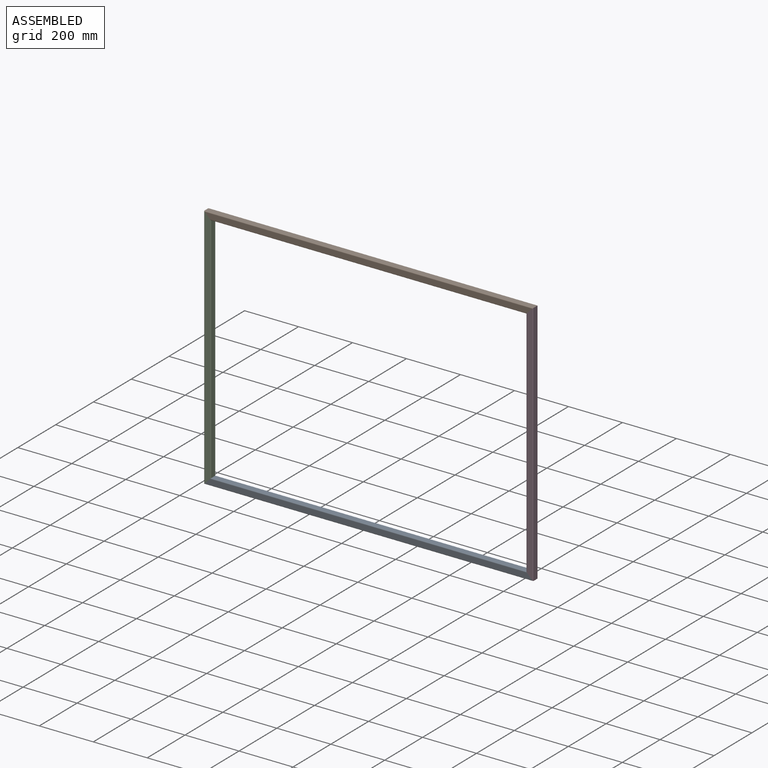
[diagram: assembled view]
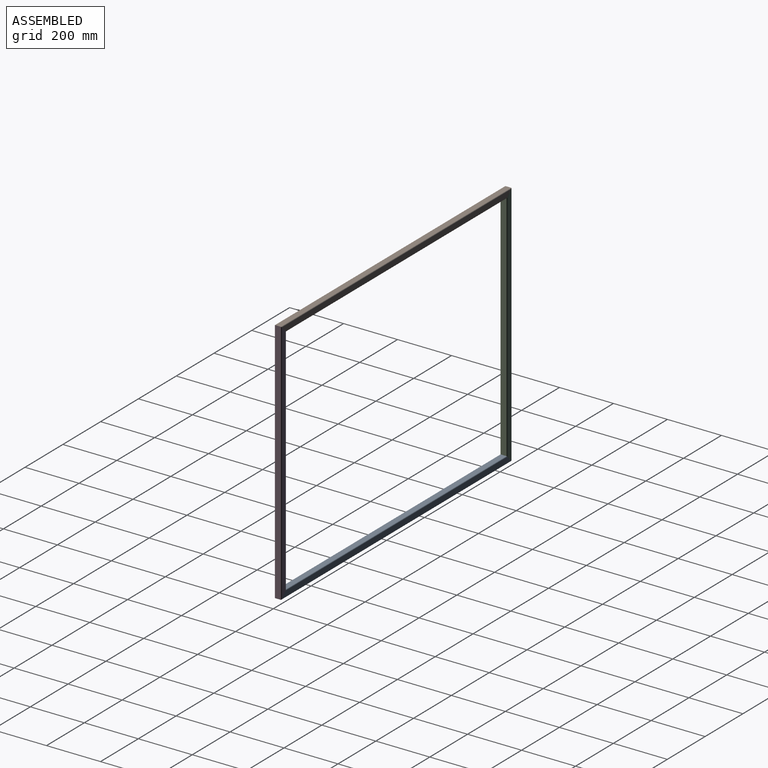
[diagram: assembled view, second angle]
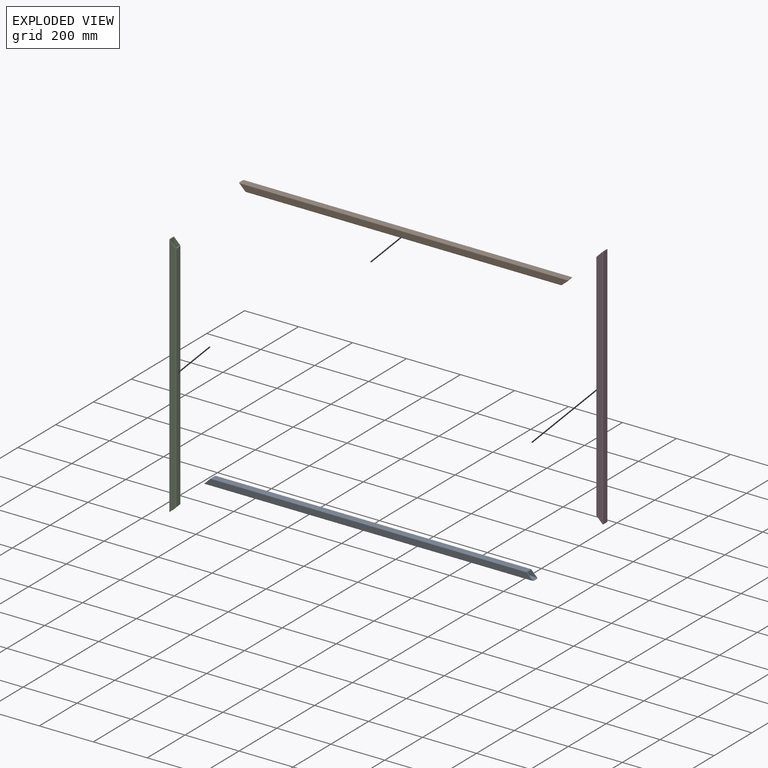
[diagram: exploded view]
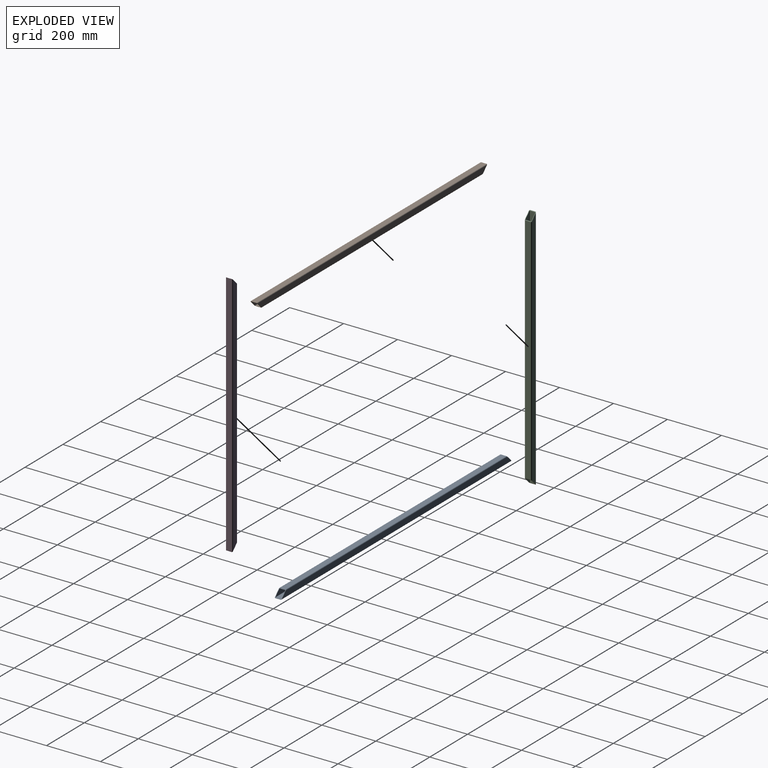
[diagram: exploded view, second angle]
ASSEMBLY  parts=4 mates=3
PART A: 18 faces, bbox 25.4x25.4x1219.2 mm
  f0: plane 1168.4x20.32mm, normal (-1,0,0), area 23741.9mm2, adj f3,f4,f16,f17
  f1: cylinder r=2.54mm len=1219.2mm, axis (0,0,-1), area 4857mm2, adj f2,f15,f16,f17
  f2: plane 1214.12x20.32mm, normal (0,1,0), area 24258mm2, adj f1,f3,f16,f17
  f3: cylinder r=2.54mm len=1173.48mm, axis (0,0,-1), area 4669.1mm2, adj f0,f2,f16,f17
  f4: cylinder r=2.54mm len=1173.48mm, axis (0,0,-1), area 4669.1mm2, adj f0,f5,f16,f17
  f5: plane 1214.12x20.32mm, normal (0,-1,0), area 24258mm2, adj f4,f14,f16,f17
  f6: cylinder r=1.27mm len=1174.24mm, axis (0,0,-1), area 2339.3mm2, adj f7,f13,f16,f17
  f7: plane 1213.36x19.56mm, normal (0,-1,0), area 23348.3mm2, adj f6,f8,f16,f17
  f8: cylinder r=1.27mm len=1215.9mm, axis (0,0,-1), area 2423.8mm2, adj f7,f9,f16,f17
  f9: plane 1215.9x19.56mm, normal (-1,0,0), area 23780.5mm2, adj f8,f10,f16,f17
  f10: cylinder r=1.27mm len=1215.9mm, axis (0,0,-1), area 2423.8mm2, adj f9,f11,f16,f17
  f11: plane 1213.36x19.56mm, normal (0,1,0), area 23348.3mm2, adj f10,f12,f16,f17
  f12: cylinder r=1.27mm len=1174.24mm, axis (0,0,-1), area 2339.3mm2, adj f11,f13,f16,f17
  f13: plane 1171.7x19.56mm, normal (1,0,0), area 22916.1mm2, adj f6,f12,f16,f17
  f14: cylinder r=2.54mm len=1219.2mm, axis (0,0,-1), area 4857mm2, adj f5,f15,f16,f17
  f15: plane 1219.2x20.32mm, normal (1,0,0), area 24774.1mm2, adj f1,f14,f16,f17
  f16: plane 25.4x25.4mm, normal (-0.71,0,0.71), area 215.9mm2, adj f0,f1,f2,f3,f4,f5,f6,f7
  f17: plane 25.4x25.4mm, normal (-0.71,0,-0.71), area 215.9mm2, adj f0,f1,f2,f3,f4,f5,f6,f7
PART B: same geometry as A
PART C: 18 faces, bbox 25.4x25.4x914.4 mm
  f0: plane 863.6x20.32mm, normal (-1,0,0), area 17548.4mm2, adj f3,f4,f16,f17
  f1: cylinder r=2.54mm len=914.4mm, axis (0,0,-1), area 3640.9mm2, adj f2,f15,f16,f17
  f2: plane 909.32x20.32mm, normal (0,1,0), area 18064.5mm2, adj f1,f3,f16,f17
  f3: cylinder r=2.54mm len=868.68mm, axis (0,0,-1), area 3453mm2, adj f0,f2,f16,f17
  f4: cylinder r=2.54mm len=868.68mm, axis (0,0,-1), area 3453mm2, adj f0,f5,f16,f17
  f5: plane 909.32x20.32mm, normal (0,-1,0), area 18064.5mm2, adj f4,f14,f16,f17
  f6: cylinder r=1.27mm len=869.44mm, axis (0,0,-1), area 1731.2mm2, adj f7,f13,f16,f17
  f7: plane 908.56x19.56mm, normal (0,-1,0), area 17387.1mm2, adj f6,f8,f16,f17
  f8: cylinder r=1.27mm len=911.1mm, axis (0,0,-1), area 1815.7mm2, adj f7,f9,f16,f17
  f9: plane 911.1x19.56mm, normal (-1,0,0), area 17819.3mm2, adj f8,f10,f16,f17
  f10: cylinder r=1.27mm len=911.1mm, axis (0,0,-1), area 1815.7mm2, adj f9,f11,f16,f17
  f11: plane 908.56x19.56mm, normal (0,1,0), area 17387.1mm2, adj f10,f12,f16,f17
  f12: cylinder r=1.27mm len=869.44mm, axis (0,0,-1), area 1731.2mm2, adj f11,f13,f16,f17
  f13: plane 866.9x19.56mm, normal (1,0,0), area 16954.9mm2, adj f6,f12,f16,f17
  f14: cylinder r=2.54mm len=914.4mm, axis (0,0,-1), area 3640.9mm2, adj f5,f15,f16,f17
  f15: plane 914.4x20.32mm, normal (1,0,0), area 18580.6mm2, adj f1,f14,f16,f17
  f16: plane 25.4x25.4mm, normal (-0.71,0,0.71), area 215.9mm2, adj f0,f1,f2,f3,f4,f5,f6,f7
  f17: plane 25.4x25.4mm, normal (-0.71,0,-0.71), area 215.9mm2, adj f0,f1,f2,f3,f4,f5,f6,f7
PART D: same geometry as C
PLACE A rot(axis=(0.71,0,-0.71),180deg) t=(49.34,-1.2,-433.93)mm fixed
PLACE B rot(axis=(0,-1,0),90deg) t=(49.34,-1.2,455.07)mm
PLACE C rot(axis=(0,0,-1),180deg) t=(-547.56,-1.2,10.57)mm
PLACE D t=(646.24,-1.2,10.57)mm
MATE fastened B.f17 <-> D.f16  axis (0.71,0,-0.71) through (658.94,-1.2,467.77)mm
MATE fastened B.f16 <-> C.f16  axis (-0.71,0,-0.71) through (-560.26,-1.2,467.77)mm
MATE fastened D.f17 <-> A.f17  axis (-0.71,0,-0.71) through (658.94,-1.2,-446.63)mm
